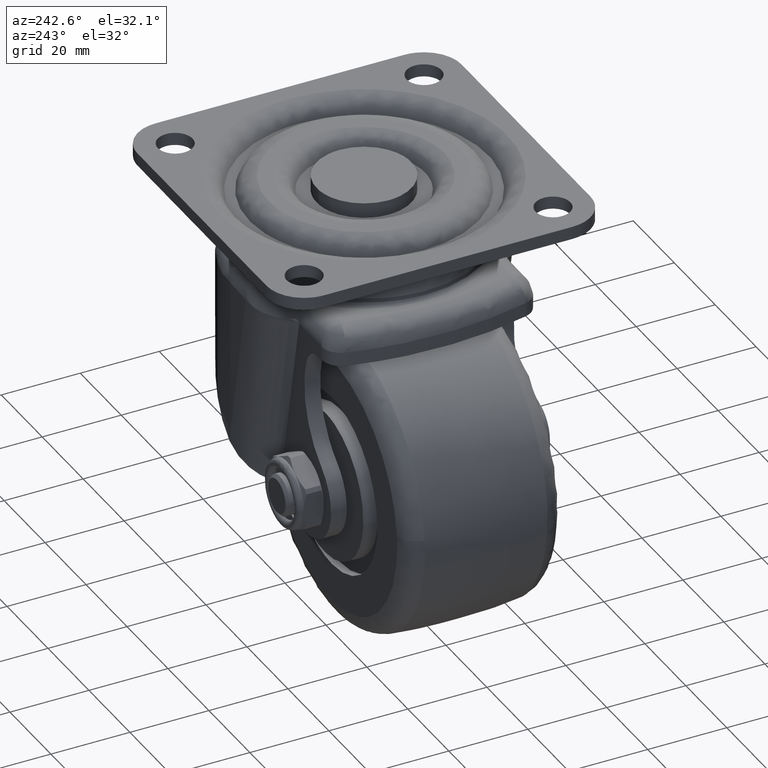
[diagram: clean part render]
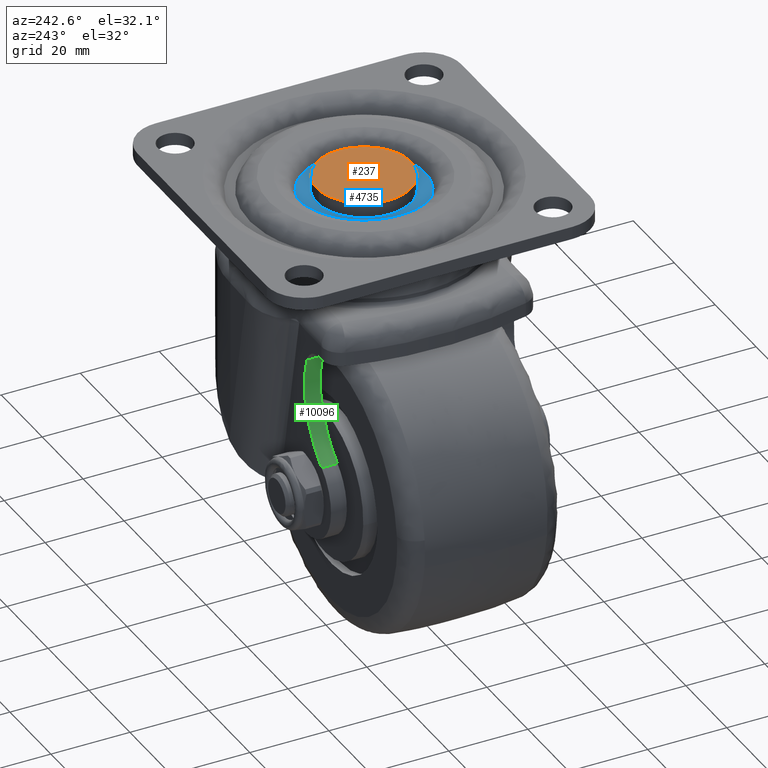
[diagram: same view with three faces highlighted in distinct colors, each labeled with its STEP entity id]
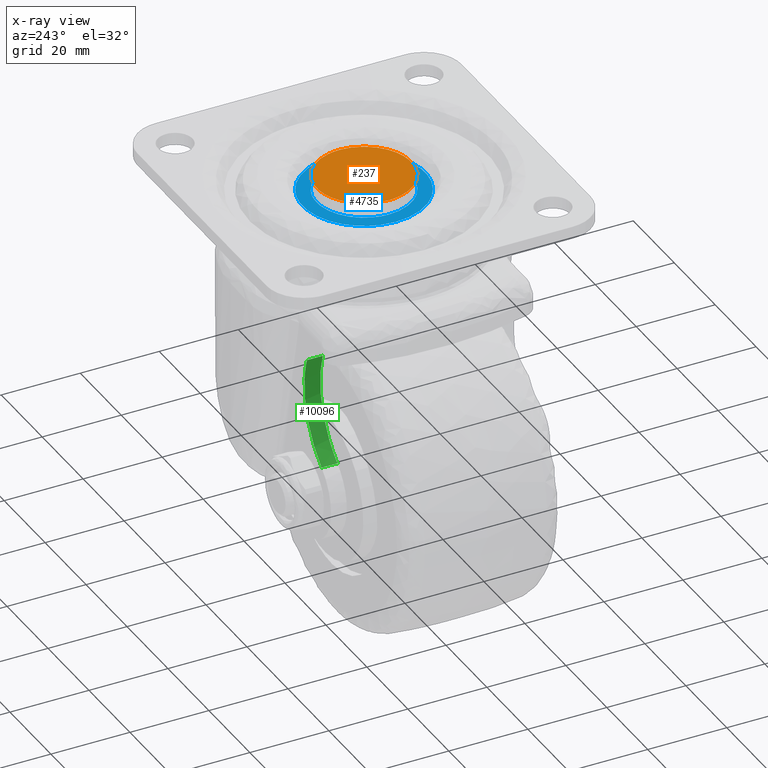
[diagram: x-ray of the same camera — body ghosted, the three highlighted faces saturated]
A machine part, auxiliary view with three faces highlighted in distinct colors.
The next image is the same camera in x-ray (body ghosted, the three faces saturated) — at least one of them is partly hidden behind the body in this view.
Their STEP definitions:

[orange] entity #237 — the highlighted face is a freeform B-spline surface patch.
#62=CARTESIAN_POINT('',(-12.0,1.136868E-013,-0.700000000000034));
#63=VERTEX_POINT('',#62);
#64=CARTESIAN_POINT('',(-0.941509148809319,11.963008004791730,-0.700000000000034));
#65=VERTEX_POINT('',#64);
#66=CARTESIAN_POINT('',(-12.0,1.136868E-013,-0.700000000000034));
#67=CARTESIAN_POINT('',(-12.0,11.092685899758887,-0.700000000000034));
#68=CARTESIAN_POINT('',(-0.941509148809319,11.963008004791726,-0.700000000000034));
#76=(BOUNDED_CURVE()B_SPLINE_CURVE(2,(#66,#67,#68),.UNSPECIFIED.,.F.,.U.)B_SPLINE_CURVE_WITH_KNOTS((3,3),(0.500000000000000,0.736331300630614),.UNSPECIFIED.)CURVE()GEOMETRIC_REPRESENTATION_ITEM()RATIONAL_B_SPLINE_CURVE((1.0,0.723120658607718,0.969723356167324))REPRESENTATION_ITEM(''));
#77=EDGE_CURVE('',#63,#65,#76,.T.);
#118=CARTESIAN_POINT('',(0.941509148809318,-11.963008004791501,-0.700000000000034));
#119=VERTEX_POINT('',#118);
#125=CARTESIAN_POINT('',(0.941509148809318,-11.963008004791501,-0.700000000000034));
#126=CARTESIAN_POINT('',(0.471481284167502,-11.999999999999886,-0.700000000000034));
#127=CARTESIAN_POINT('',(-1.392216E-029,-11.999999999999890,-0.700000000000034));
#128=CARTESIAN_POINT('',(-12.0,-11.999999999999885,-0.700000000000034));
#129=CARTESIAN_POINT('',(-12.0,1.136868E-013,-0.700000000000034));
#137=(BOUNDED_CURVE()B_SPLINE_CURVE(2,(#125,#126,#127,#128,#129),.UNSPECIFIED.,.F.,.U.)B_SPLINE_CURVE_WITH_KNOTS((3,2,3),(0.236331300630614,0.250000000000000,0.500000000000000),.UNSPECIFIED.)CURVE()GEOMETRIC_REPRESENTATION_ITEM()RATIONAL_B_SPLINE_CURVE((0.969723356167323,0.983986122578829,1.0,0.707106781186548,1.0))REPRESENTATION_ITEM(''));
#138=EDGE_CURVE('',#119,#63,#137,.T.);
#161=CARTESIAN_POINT('',(12.0,1.136868E-013,-0.700000000000034));
#162=VERTEX_POINT('',#161);
#163=CARTESIAN_POINT('',(-0.941509148809319,11.963008004791739,-0.700000000000034));
#164=CARTESIAN_POINT('',(-0.471481284167504,12.000000000000119,-0.700000000000034));
#165=CARTESIAN_POINT('',(-1.392216E-029,12.000000000000121,-0.700000000000034));
#166=CARTESIAN_POINT('',(12.0,12.000000000000114,-0.700000000000034));
#167=CARTESIAN_POINT('',(12.0,1.136868E-013,-0.700000000000034));
#175=(BOUNDED_CURVE()B_SPLINE_CURVE(2,(#163,#164,#165,#166,#167),.UNSPECIFIED.,.F.,.U.)B_SPLINE_CURVE_WITH_KNOTS((3,2,3),(0.736331300630614,0.750000000000000,1.0),.UNSPECIFIED.)CURVE()GEOMETRIC_REPRESENTATION_ITEM()RATIONAL_B_SPLINE_CURVE((0.969723356167323,0.983986122578829,1.0,0.707106781186548,1.0))REPRESENTATION_ITEM(''));
#176=EDGE_CURVE('',#65,#162,#175,.T.);
#178=CARTESIAN_POINT('',(12.0,1.136868E-013,-0.700000000000034));
#179=CARTESIAN_POINT('',(12.000000000000002,-11.092685899758630,-0.700000000000034));
#180=CARTESIAN_POINT('',(0.941509148809318,-11.963008004791501,-0.700000000000034));
#188=(BOUNDED_CURVE()B_SPLINE_CURVE(2,(#178,#179,#180),.UNSPECIFIED.,.F.,.U.)B_SPLINE_CURVE_WITH_KNOTS((3,3),(0.0,0.236331300630614),.UNSPECIFIED.)CURVE()GEOMETRIC_REPRESENTATION_ITEM()RATIONAL_B_SPLINE_CURVE((1.0,0.723120658607719,0.969723356167323))REPRESENTATION_ITEM(''));
#189=EDGE_CURVE('',#162,#119,#188,.T.);
#226=CARTESIAN_POINT('',(-13.198799953483340,-13.195137032722069,-0.700000000000000));
#227=CARTESIAN_POINT('',(13.198800597213509,-13.195137032722069,-0.700000000000000));
#228=CARTESIAN_POINT('',(-13.198799953483340,13.195137676452470,-0.700000000000000));
#229=CARTESIAN_POINT('',(13.198800597213509,13.195137676452470,-0.700000000000000));
#230=B_SPLINE_SURFACE_WITH_KNOTS('',1,1,((#226,#228),(#227,#229)),.UNSPECIFIED.,.F.,.F.,.U.,(2,2),(2,2),(0.0,26.397600550696851),(0.0,26.390274709174541),.UNSPECIFIED.);
#231=ORIENTED_EDGE('',*,*,#176,.F.);
#232=ORIENTED_EDGE('',*,*,#77,.F.);
#233=ORIENTED_EDGE('',*,*,#138,.F.);
#234=ORIENTED_EDGE('',*,*,#189,.F.);
#235=EDGE_LOOP('',(#231,#232,#233,#234));
#236=FACE_OUTER_BOUND('',#235,.T.);
#237=ADVANCED_FACE('',(#236),#230,.T.);

[blue] entity #4735 — the highlighted face is a freeform B-spline surface patch.
#2966=CARTESIAN_POINT('',(1.416410815948204,11.916114316356021,-3.800000000000135));
#2967=VERTEX_POINT('',#2966);
#2968=CARTESIAN_POINT('',(-12.0,0.0,-3.800000000000135));
#2969=VERTEX_POINT('',#2968);
#2970=CARTESIAN_POINT('',(1.416410815948204,11.916114316356024,-3.800000000000135));
#2971=CARTESIAN_POINT('',(0.710689435890734,12.000000000000002,-3.800000000000135));
#2972=CARTESIAN_POINT('',(0.0,12.0,-3.800000000000135));
#2973=CARTESIAN_POINT('',(-12.0,12.0,-3.800000000000135));
#2974=CARTESIAN_POINT('',(-12.0,0.0,-3.800000000000135));
#2982=(BOUNDED_CURVE()B_SPLINE_CURVE(2,(#2970,#2971,#2972,#2973,#2974),.UNSPECIFIED.,.F.,.U.)B_SPLINE_CURVE_WITH_KNOTS((3,2,3),(0.729562473513741,0.750000000000000,1.0),.UNSPECIFIED.)CURVE()GEOMETRIC_REPRESENTATION_ITEM()RATIONAL_B_SPLINE_CURVE((0.956026754184155,0.976055948331417,1.0,0.707106781186548,1.0))REPRESENTATION_ITEM(''));
#2983=EDGE_CURVE('',#2967,#2969,#2982,.T.);
#2985=CARTESIAN_POINT('',(-0.732576155561376,-11.977617967536901,-3.799999999999989));
#2986=VERTEX_POINT('',#2985);
#2987=CARTESIAN_POINT('',(-12.0,0.0,-3.800000000000135));
#2988=CARTESIAN_POINT('',(-11.999999999999998,-11.288478769293063,-3.800000000000134));
#2989=CARTESIAN_POINT('',(-0.732576155561376,-11.977617967536899,-3.799999999999989));
#2997=(BOUNDED_CURVE()B_SPLINE_CURVE(2,(#2987,#2988,#2989),.UNSPECIFIED.,.F.,.U.)B_SPLINE_CURVE_WITH_KNOTS((3,3),(0.0,0.239333053269966),.UNSPECIFIED.)CURVE()GEOMETRIC_REPRESENTATION_ITEM()RATIONAL_B_SPLINE_CURVE((1.0,0.719603886637232,0.976072236763607))REPRESENTATION_ITEM(''));
#2998=EDGE_CURVE('',#2969,#2986,#2997,.T.);
#3065=CARTESIAN_POINT('',(12.0,0.0,-3.800000000000135));
#3066=VERTEX_POINT('',#3065);
#3067=CARTESIAN_POINT('',(12.0,0.0,-3.800000000000135));
#3068=CARTESIAN_POINT('',(12.0,10.658094311295493,-3.800000000000134));
#3069=CARTESIAN_POINT('',(1.416410815948204,11.916114316356026,-3.800000000000135));
#3077=(BOUNDED_CURVE()B_SPLINE_CURVE(2,(#3067,#3068,#3069),.UNSPECIFIED.,.F.,.U.)B_SPLINE_CURVE_WITH_KNOTS((3,3),(0.500000000000000,0.729562473513740),.UNSPECIFIED.)CURVE()GEOMETRIC_REPRESENTATION_ITEM()RATIONAL_B_SPLINE_CURVE((1.0,0.731050832855131,0.956026754184154))REPRESENTATION_ITEM(''));
#3078=EDGE_CURVE('',#3066,#2967,#3077,.T.);
#3112=CARTESIAN_POINT('',(-0.732576155561376,-11.977617967536899,-3.799999999999989));
#3113=CARTESIAN_POINT('',(-0.366629991296010,-11.999999999999998,-3.800000000000135));
#3114=CARTESIAN_POINT('',(0.0,-12.0,-3.800000000000135));
#3115=CARTESIAN_POINT('',(12.0,-12.0,-3.800000000000135));
#3116=CARTESIAN_POINT('',(12.0,0.0,-3.800000000000135));
#3124=(BOUNDED_CURVE()B_SPLINE_CURVE(2,(#3112,#3113,#3114,#3115,#3116),.UNSPECIFIED.,.F.,.U.)B_SPLINE_CURVE_WITH_KNOTS((3,2,3),(0.239333053269966,0.250000000000000,0.500000000000000),.UNSPECIFIED.)CURVE()GEOMETRIC_REPRESENTATION_ITEM()RATIONAL_B_SPLINE_CURVE((0.976072236763607,0.987502894549315,1.0,0.707106781186548,1.0))REPRESENTATION_ITEM(''));
#3125=EDGE_CURVE('',#2986,#3066,#3124,.T.);
#3909=CARTESIAN_POINT('',(15.500000000000000,0.0,-3.800000000000135));
#3910=VERTEX_POINT('',#3909);
#3911=CARTESIAN_POINT('',(1.902291704806662,15.382824392034800,-3.799999999170612));
#3912=VERTEX_POINT('',#3911);
#3913=CARTESIAN_POINT('',(15.500000000000000,0.0,-3.800000000000135));
#3914=CARTESIAN_POINT('',(15.500000000000005,13.701286136110289,-3.800000000000135));
#3915=CARTESIAN_POINT('',(1.902291704806662,15.382824392034799,-3.799999999170612));
#3923=(BOUNDED_CURVE()B_SPLINE_CURVE(2,(#3913,#3914,#3915),.UNSPECIFIED.,.F.,.U.)B_SPLINE_CURVE_WITH_KNOTS((3,3),(0.500000000000000,0.728763968093568),.UNSPECIFIED.)CURVE()GEOMETRIC_REPRESENTATION_ITEM()RATIONAL_B_SPLINE_CURVE((1.0,0.731986340146148,0.954467626943872))REPRESENTATION_ITEM(''));
#3924=EDGE_CURVE('',#3910,#3912,#3923,.T.);
#3926=CARTESIAN_POINT('',(-15.500000000000000,0.0,-3.800000000000135));
#3927=VERTEX_POINT('',#3926);
#3928=CARTESIAN_POINT('',(-15.500000000000000,0.0,-3.800000000000135));
#3929=CARTESIAN_POINT('',(-15.500000000000004,-15.500000000000004,-3.800000000000135));
#3930=CARTESIAN_POINT('',(0.0,-15.500000000000000,-3.800000000000135));
#3931=CARTESIAN_POINT('',(15.500000000000004,-15.500000000000004,-3.800000000000135));
#3932=CARTESIAN_POINT('',(15.500000000000000,0.0,-3.800000000000135));
#3940=(BOUNDED_CURVE()B_SPLINE_CURVE(2,(#3928,#3929,#3930,#3931,#3932),.UNSPECIFIED.,.F.,.U.)B_SPLINE_CURVE_WITH_KNOTS((3,2,3),(0.0,0.250000000000000,0.500000000000000),.UNSPECIFIED.)CURVE()GEOMETRIC_REPRESENTATION_ITEM()RATIONAL_B_SPLINE_CURVE((1.0,0.707106781186548,1.0,0.707106781186548,1.0))REPRESENTATION_ITEM(''));
#3941=EDGE_CURVE('',#3927,#3910,#3940,.T.);
#3943=CARTESIAN_POINT('',(-15.060291860363931,3.665734454024450,-3.799999999117246));
#3944=VERTEX_POINT('',#3943);
#3945=CARTESIAN_POINT('',(-15.060291860363934,3.665734454024450,-3.799999999117246));
#3946=CARTESIAN_POINT('',(-15.500000000000000,1.859238920173491,-3.800000000000135));
#3947=CARTESIAN_POINT('',(-15.500000000000000,0.0,-3.800000000000135));
#3955=(BOUNDED_CURVE()B_SPLINE_CURVE(2,(#3945,#3946,#3947),.UNSPECIFIED.,.F.,.U.)B_SPLINE_CURVE_WITH_KNOTS((3,3),(0.959598322304979,1.0),.UNSPECIFIED.)CURVE()GEOMETRIC_REPRESENTATION_ITEM()RATIONAL_B_SPLINE_CURVE((0.920631806220843,0.952666490297766,1.0))REPRESENTATION_ITEM(''));
#3956=EDGE_CURVE('',#3944,#3927,#3955,.T.);
#4053=CARTESIAN_POINT('',(1.902291704806662,15.382824392034795,-3.799999999170613));
#4054=CARTESIAN_POINT('',(0.954754689924891,15.500000000000000,-3.800000000000135));
#4055=CARTESIAN_POINT('',(0.0,15.500000000000000,-3.800000000000135));
#4056=CARTESIAN_POINT('',(-12.179784938129016,15.499999999999998,-3.800000000000134));
#4057=CARTESIAN_POINT('',(-15.060291860363932,3.665734454024449,-3.799999999117246));
#4065=(BOUNDED_CURVE()B_SPLINE_CURVE(2,(#4053,#4054,#4055,#4056,#4057),.UNSPECIFIED.,.F.,.U.)B_SPLINE_CURVE_WITH_KNOTS((3,2,3),(0.728763968093569,0.750000000000000,0.959598322304980),.UNSPECIFIED.)CURVE()GEOMETRIC_REPRESENTATION_ITEM()RATIONAL_B_SPLINE_CURVE((0.954467626943873,0.975120441040401,1.0,0.754440290888780,0.920631806220845))REPRESENTATION_ITEM(''));
#4066=EDGE_CURVE('',#3912,#3944,#4065,.T.);
#4718=CARTESIAN_POINT('',(-17.048449939915990,17.044343781819581,-3.800000000000115));
#4719=CARTESIAN_POINT('',(17.048450771400780,17.044343781819581,-3.800000000000115));
#4720=CARTESIAN_POINT('',(-17.048449939915990,-17.048255426194231,-3.800000000000115));
#4721=CARTESIAN_POINT('',(17.048450771400780,-17.048255426194231,-3.800000000000115));
#4722=B_SPLINE_SURFACE_WITH_KNOTS('',1,1,((#4718,#4720),(#4719,#4721)),.UNSPECIFIED.,.F.,.F.,.U.,(2,2),(2,2),(0.0,34.096900711316763),(0.0,34.092599208013809),.UNSPECIFIED.);
#4723=ORIENTED_EDGE('',*,*,#3941,.T.);
#4724=ORIENTED_EDGE('',*,*,#3924,.T.);
#4725=ORIENTED_EDGE('',*,*,#4066,.T.);
#4726=ORIENTED_EDGE('',*,*,#3956,.T.);
#4727=EDGE_LOOP('',(#4723,#4724,#4725,#4726));
#4728=FACE_OUTER_BOUND('',#4727,.T.);
#4729=ORIENTED_EDGE('',*,*,#2998,.F.);
#4730=ORIENTED_EDGE('',*,*,#2983,.F.);
#4731=ORIENTED_EDGE('',*,*,#3078,.F.);
#4732=ORIENTED_EDGE('',*,*,#3125,.F.);
#4733=EDGE_LOOP('',(#4729,#4730,#4731,#4732));
#4734=FACE_BOUND('',#4733,.T.);
#4735=ADVANCED_FACE('',(#4728,#4734),#4722,.F.);

[green] entity #10096 — the highlighted face is a freeform B-spline surface patch.
#9936=CARTESIAN_POINT('',(-17.672350421266650,26.500000000000000,-28.826243819394598));
#9937=VERTEX_POINT('',#9936);
#9938=CARTESIAN_POINT('',(-17.672350421266650,22.500000000000000,-28.826243819394598));
#9939=VERTEX_POINT('',#9938);
#9940=CARTESIAN_POINT('',(-17.672350421266650,26.500000000000000,-28.826243819394598));
#9941=CARTESIAN_POINT('',(-17.672350421266650,22.500000000000000,-28.826243819394598));
#9942=QUASI_UNIFORM_CURVE('',1,(#9940,#9941),.UNSPECIFIED.,.F.,.U.);
#9943=EDGE_CURVE('',#9937,#9939,#9942,.T.);
#10044=CARTESIAN_POINT('',(-17.826280260389922,26.600000000000001,-27.898407431086529));
#10045=CARTESIAN_POINT('',(-17.826280260389922,22.397500000000001,-27.898407431086529));
#10046=CARTESIAN_POINT('',(-14.604601548368311,26.599999999999998,-45.039656941576702));
#10047=CARTESIAN_POINT('',(-14.604601548368311,22.397499999999997,-45.039656941576702));
#10048=CARTESIAN_POINT('',(-30.559015809071774,26.600000000000005,-52.086522493170186));
#10049=CARTESIAN_POINT('',(-30.559015809071774,22.397499999999994,-52.086522493170186));
#10057=(BOUNDED_SURFACE()B_SPLINE_SURFACE(1,2,((#10044,#10046,#10048),(#10045,#10047,#10049)),.UNSPECIFIED.,.F.,.F.,.U.)B_SPLINE_SURFACE_WITH_KNOTS((2,2),(3,3),(0.0,4.202500000000006),(0.0,30.650779794138021),.UNSPECIFIED.)GEOMETRIC_REPRESENTATION_ITEM()RATIONAL_B_SPLINE_SURFACE(((1.0,0.780797611596500,0.992816370415076),(1.0,0.780797611596500,0.992816370415076)))REPRESENTATION_ITEM('')SURFACE());
#10058=CARTESIAN_POINT('',(-29.410511823840551,26.500000000000000,-51.539025059727713));
#10059=VERTEX_POINT('',#10058);
#10060=CARTESIAN_POINT('',(-29.410511823840551,22.500000000000000,-51.539025059727713));
#10061=VERTEX_POINT('',#10060);
#10062=CARTESIAN_POINT('',(-29.410511823840551,26.500000000000000,-51.539025059727713));
#10063=CARTESIAN_POINT('',(-29.410511823840551,22.500000000000000,-51.539025059727713));
#10064=QUASI_UNIFORM_CURVE('',1,(#10062,#10063),.UNSPECIFIED.,.F.,.U.);
#10065=EDGE_CURVE('',#10059,#10061,#10064,.T.);
#10066=ORIENTED_EDGE('',*,*,#10065,.T.);
#10067=CARTESIAN_POINT('',(-17.672350421266650,22.500000000000000,-28.826243819394598));
#10068=CARTESIAN_POINT('',(-15.433463057767039,22.499999999999996,-44.372903117378620));
#10069=CARTESIAN_POINT('',(-29.410511823840551,22.500000000000000,-51.539025059727713));
#10077=(BOUNDED_CURVE()B_SPLINE_CURVE(2,(#10067,#10068,#10069),.UNSPECIFIED.,.F.,.U.)CURVE()GEOMETRIC_REPRESENTATION_ITEM()QUASI_UNIFORM_CURVE()RATIONAL_B_SPLINE_CURVE((1.0,0.813860179767333,1.0))REPRESENTATION_ITEM(''));
#10078=EDGE_CURVE('',#9939,#10061,#10077,.T.);
#10079=ORIENTED_EDGE('',*,*,#10078,.F.);
#10080=ORIENTED_EDGE('',*,*,#9943,.F.);
#10081=CARTESIAN_POINT('',(-29.410511823840551,26.500000000000000,-51.539025059727713));
#10082=CARTESIAN_POINT('',(-15.433463057767039,26.499999999999993,-44.372903117378620));
#10083=CARTESIAN_POINT('',(-17.672350421266650,26.500000000000000,-28.826243819394598));
#10091=(BOUNDED_CURVE()B_SPLINE_CURVE(2,(#10081,#10082,#10083),.UNSPECIFIED.,.F.,.U.)CURVE()GEOMETRIC_REPRESENTATION_ITEM()QUASI_UNIFORM_CURVE()RATIONAL_B_SPLINE_CURVE((1.0,0.813860179767333,1.0))REPRESENTATION_ITEM(''));
#10092=EDGE_CURVE('',#10059,#9937,#10091,.T.);
#10093=ORIENTED_EDGE('',*,*,#10092,.F.);
#10094=EDGE_LOOP('',(#10066,#10079,#10080,#10093));
#10095=FACE_OUTER_BOUND('',#10094,.T.);
#10096=ADVANCED_FACE('',(#10095),#10057,.F.);